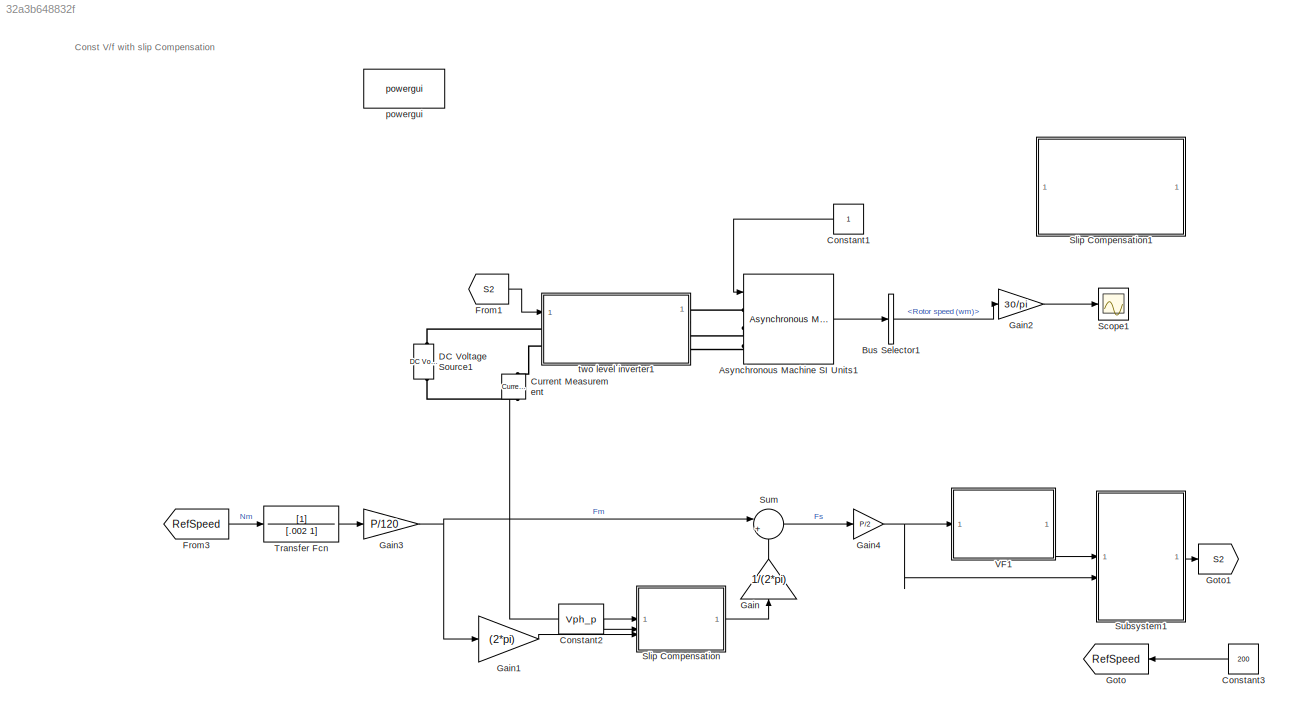
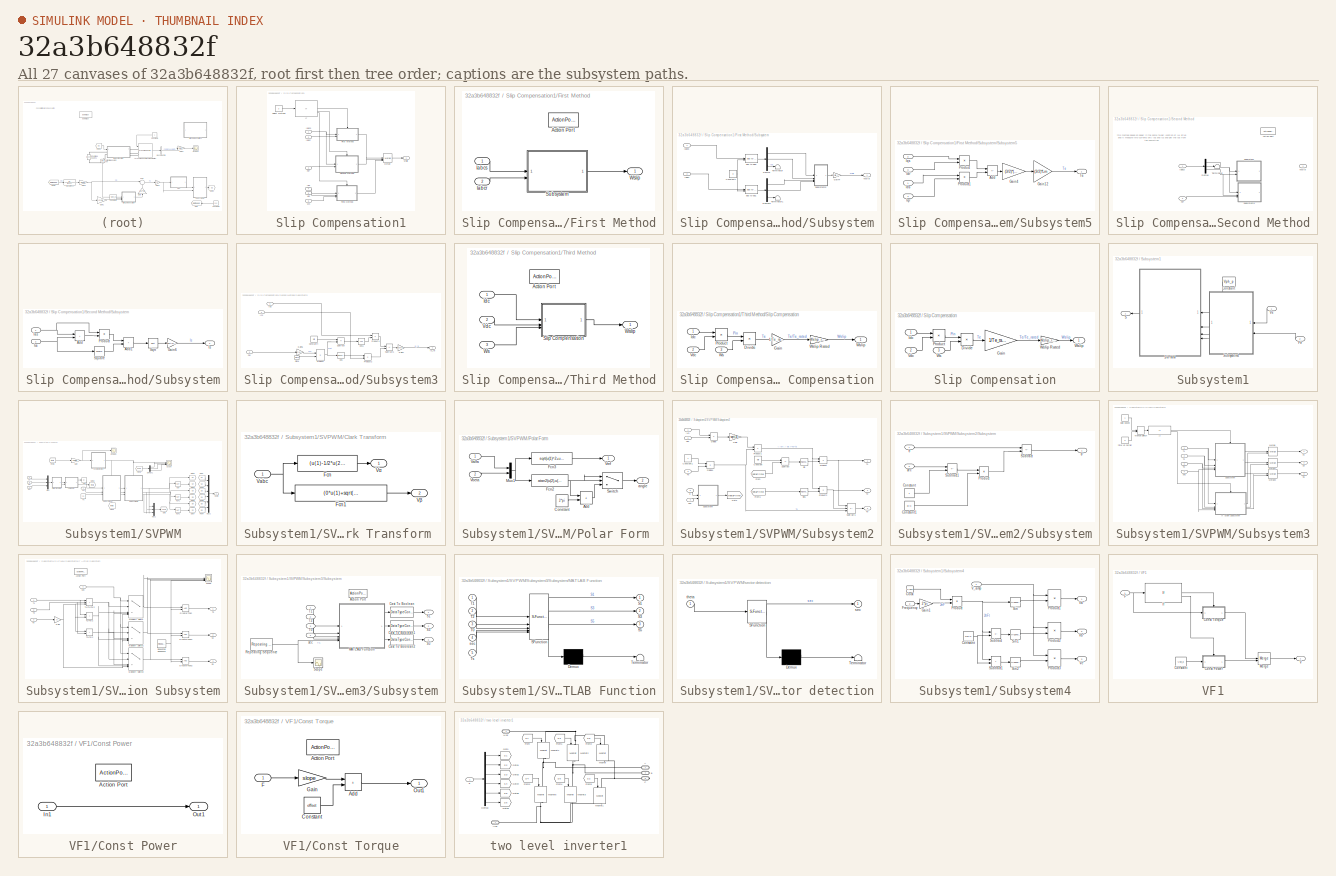
[diagram: thumbnail index - all 27 canvases of the model, root first then tree order]
MODEL slx_32a3b648832f
KIND model
CONFIG AbsTol = auto
CONFIG EnableMultiTasking = off
CONFIG FixedStep = auto
CONFIG MaxStep = auto
CONFIG MinStep = auto
CONFIG RelTol = 1e-3
CONFIG SampleTimeConstraint = Unconstrained
CONFIG SolverName = VariableStepAuto
CONFIG StartTime = 0.0
CONFIG StopTime = 10.0
BLOCK [Reference] Asynchronous Machine SI Units1  REF=spsAsynchronousMachineSIUnitsLib/Asynchronous Machine
SI Units
  SourceBlock = spsAsynchronousMachineSIUnitsLib/Asynchronous Machine\nSI Units
  SourceType = Asynchronous Machine
BLOCK [BusSelector] Bus Selector1
  OutputSignals = Mechanical.Rotor speed (wm),Stator measurements.Stator current is_a (A),Stator measurements.Stator current is_b (A),Stator measurements.Stator current is_c (A),Rotor measurements.Rotor current ir_a (A),Rotor measurements.Rotor current ir_b (A),Rotor measurements.Rotor current ir_c (A)
BLOCK [Constant] Constant1
  NameLocation = top
BLOCK [Constant] Constant2
  Value = Vph_p
BLOCK [Constant] Constant3
  NameLocation = top
  Value = 200
BLOCK [Reference] Current Measurement  REF=spsCurrentMeasurementLib/Current Measurement
  LibrarySourceBlock = sps_lib/Sensors and Measurements/Current Measurement
  NameLocation = left
  SourceBlock = spsCurrentMeasurementLib/Current Measurement
  SourceType = Current Measurement
  UserDataPersistent = on
BLOCK [Reference] DC Voltage Source1  REF=spsDCVoltageSourceLib/DC Voltage Source
  LibrarySourceBlock = sps_lib/Sources/DC Voltage Source
  SourceBlock = spsDCVoltageSourceLib/DC Voltage Source
  SourceType = DC Voltage Source
BLOCK [From] From1
  GotoTag = S2
BLOCK [From] From3
  GotoTag = RefSpeed
BLOCK [Gain] Gain
  Gain = 1/(2*pi)
  NameLocation = right
BLOCK [Gain] Gain1
  Gain = (2*pi)
BLOCK [Gain] Gain2
  Gain = 30/pi
BLOCK [Gain] Gain3
  Gain = P/120
BLOCK [Gain] Gain4
  Gain = P/2
BLOCK [Goto] Goto
  GotoTag = RefSpeed
  NameLocation = top
BLOCK [Goto] Goto1
  GotoTag = S2
BLOCK [Scope] Scope1
  Floating = off
  NumInputPorts = 1
  ScopeSpecificationString = Simulink.scopes.TimeScopeBlockCfg('CurrentConfiguration', extmgr.ConfigurationSet(extmgr.Configuration('Core','General UI',true),extmgr.Configuration('Core','Source UI',true),extmgr.Configuration('Sources','WiredSimulink',true,'DataLoggingVariableName','ScopeData1'),extmgr.Configuration('Visuals','Time Domain',true,'SerializedDisplays',{struct('MinYLimReal','-1.03916','MaxYLimReal','0.11546','YLab...<+1526ch>
BLOCK [SubSystem] Slip Compensation
BLOCK [Product] Slip Compensation/Divide
  Inputs = */
BLOCK [Gain] Slip Compensation/Gain
  Gain = 1/Te_rated
BLOCK [Inport] Slip Compensation/Idc
BLOCK [Product] Slip Compensation/Product
BLOCK [Inport] Slip Compensation/Vdc
  Port = 2
BLOCK [Inport] Slip Compensation/Ws
  Port = 3
BLOCK [Outport] Slip Compensation/Wslip
BLOCK [Gain] Slip Compensation/Wslip Rated
  Gain = Wslip_rated
BLOCK [SubSystem] Slip Compensation1
  Commented = on
BLOCK [Inport] Slip Compensation1/Fe*
  Port = 3
BLOCK [SubSystem] Slip Compensation1/First Method
  TreatAsAtomicUnit = on
BLOCK [ActionPort] Slip Compensation1/First Method/Action Port
BLOCK [Inport] Slip Compensation1/First Method/Iabcr
  Port = 2
BLOCK [Inport] Slip Compensation1/First Method/Iabcs
BLOCK [SubSystem] Slip Compensation1/First Method/Subsystem
BLOCK [Constant] Slip Compensation1/First Method/Subsystem/Constant7
  Value = 0
BLOCK [Demux] Slip Compensation1/First Method/Subsystem/Demux
  Outputs = 3
BLOCK [Demux] Slip Compensation1/First Method/Subsystem/Demux1
  Outputs = 3
BLOCK [Gain] Slip Compensation1/First Method/Subsystem/Gain4
  Gain = Wslip_rated/Te_rated
BLOCK [Inport] Slip Compensation1/First Method/Subsystem/Iabcr
  Port = 2
BLOCK [Inport] Slip Compensation1/First Method/Subsystem/Iabcs
BLOCK [SubSystem] Slip Compensation1/First Method/Subsystem/Subsystem5
BLOCK [Sum] Slip Compensation1/First Method/Subsystem/Subsystem5/Add
  IconShape = rectangular
  Inputs = +-
BLOCK [Gain] Slip Compensation1/First Method/Subsystem/Subsystem5/Gain12
  Gain = (3/2)*Lm
BLOCK [Gain] Slip Compensation1/First Method/Subsystem/Subsystem5/Gain4
  Gain = (3/2)*(P/2)
BLOCK [Inport] Slip Compensation1/First Method/Subsystem/Subsystem5/Idr
  Port = 3
BLOCK [Inport] Slip Compensation1/First Method/Subsystem/Subsystem5/Ids
BLOCK [Inport] Slip Compensation1/First Method/Subsystem/Subsystem5/Iqr
  Port = 4
BLOCK [Inport] Slip Compensation1/First Method/Subsystem/Subsystem5/Iqs
  Port = 2
BLOCK [Product] Slip Compensation1/First Method/Subsystem/Subsystem5/Product
BLOCK [Product] Slip Compensation1/First Method/Subsystem/Subsystem5/Product1
BLOCK [Outport] Slip Compensation1/First Method/Subsystem/Subsystem5/Te
BLOCK [Terminator] Slip Compensation1/First Method/Subsystem/Terminator
BLOCK [Terminator] Slip Compensation1/First Method/Subsystem/Terminator1
BLOCK [Outport] Slip Compensation1/First Method/Subsystem/Wslip
BLOCK [Reference] Slip Compensation1/First Method/Subsystem/abc to dq0  REF=spsabctodq0Lib/abc to dq0
  LibrarySourceBlock = sps_lib/Control/abc to dq0
  SourceBlock = spsabctodq0Lib/abc to dq0
  SourceType = abc to dq0 Transformation
BLOCK [Reference] Slip Compensation1/First Method/Subsystem/abc to dq1  REF=spsabctodq0Lib/abc to dq0
  LibrarySourceBlock = sps_lib/Control/abc to dq0
  SourceBlock = spsabctodq0Lib/abc to dq0
  SourceType = abc to dq0 Transformation
BLOCK [Outport] Slip Compensation1/First Method/Wslip
BLOCK [Inport] Slip Compensation1/Iabcr
  Port = 2
BLOCK [Inport] Slip Compensation1/Iabcs
BLOCK [Inport] Slip Compensation1/Idc
  Port = 4
BLOCK [If] Slip Compensation1/If
  ElseIfExpressions = u1 == 2,u1 == 3
  IfExpression = u1 == 1
BLOCK [Merge] Slip Compensation1/Merge
  Inputs = 3
BLOCK [SubSystem] Slip Compensation1/Second Method
  TreatAsAtomicUnit = on
BLOCK [ActionPort] Slip Compensation1/Second Method/Action Port
BLOCK [Demux] Slip Compensation1/Second Method/Demux
  Outputs = 3
BLOCK [Inport] Slip Compensation1/Second Method/Fe*
  Port = 2
BLOCK [Inport] Slip Compensation1/Second Method/Iabcs
BLOCK [SubSystem] Slip Compensation1/Second Method/Subsystem
  NameLocation = top
BLOCK [Sum] Slip Compensation1/Second Method/Subsystem/Add
  IconShape = rectangular
BLOCK [Sum] Slip Compensation1/Second Method/Subsystem/Add1
  IconShape = rectangular
BLOCK [Gain] Slip Compensation1/Second Method/Subsystem/Gain6
  Gain = sqrt(2/3)
BLOCK [Inport] Slip Compensation1/Second Method/Subsystem/Ias
BLOCK [Inport] Slip Compensation1/Second Method/Subsystem/Ics
  Port = 2
BLOCK [Outport] Slip Compensation1/Second Method/Subsystem/Is
BLOCK [Product] Slip Compensation1/Second Method/Subsystem/Product
BLOCK [Sqrt] Slip Compensation1/Second Method/Subsystem/Sqrt
BLOCK [Math] Slip Compensation1/Second Method/Subsystem/Square
  Operator = square
BLOCK [SubSystem] Slip Compensation1/Second Method/Subsystem3
BLOCK [Clock] Slip Compensation1/Second Method/Subsystem3/Clock
BLOCK [Constant] Slip Compensation1/Second Method/Subsystem3/Constant4
  Value = pi/6
BLOCK [Trigonometry] Slip Compensation1/Second Method/Subsystem3/Cos
BLOCK [Trigonometry] Slip Compensation1/Second Method/Subsystem3/Cos1
  Operator = cos
BLOCK [Inport] Slip Compensation1/Second Method/Subsystem3/Fe*
  Port = 3
BLOCK [Gain] Slip Compensation1/Second Method/Subsystem3/Gain6
  Gain = 2*pi
BLOCK [Gain] Slip Compensation1/Second Method/Subsystem3/Gain7
  Gain = sqrt(3)
BLOCK [Inport] Slip Compensation1/Second Method/Subsystem3/Ias
BLOCK [Inport] Slip Compensation1/Second Method/Subsystem3/Ics
  Port = 2
BLOCK [Outport] Slip Compensation1/Second Method/Subsystem3/Is_re
BLOCK [Product] Slip Compensation1/Second Method/Subsystem3/Product
BLOCK [Product] Slip Compensation1/Second Method/Subsystem3/Product1
BLOCK [Product] Slip Compensation1/Second Method/Subsystem3/Product2
BLOCK [Sum] Slip Compensation1/Second Method/Subsystem3/Subtract
  IconShape = rectangular
  Inputs = -+
BLOCK [Sum] Slip Compensation1/Second Method/Subsystem3/Subtract1
  IconShape = rectangular
  Inputs = +-
BLOCK [Terminator] Slip Compensation1/Second Method/Terminator
BLOCK [Outport] Slip Compensation1/Second Method/Wslip
BLOCK [Constant] Slip Compensation1/Select Method
  Value = 3
BLOCK [SubSystem] Slip Compensation1/Third Method
  TreatAsAtomicUnit = on
BLOCK [ActionPort] Slip Compensation1/Third Method/Action Port
BLOCK [Inport] Slip Compensation1/Third Method/Idc
BLOCK [SubSystem] Slip Compensation1/Third Method/Slip Compensation
BLOCK [Product] Slip Compensation1/Third Method/Slip Compensation/Divide
  Inputs = */
BLOCK [Gain] Slip Compensation1/Third Method/Slip Compensation/Gain
  Gain = 1/Te_rated
BLOCK [Inport] Slip Compensation1/Third Method/Slip Compensation/Idc
BLOCK [Product] Slip Compensation1/Third Method/Slip Compensation/Product
BLOCK [Inport] Slip Compensation1/Third Method/Slip Compensation/Vdc
  Port = 2
BLOCK [Inport] Slip Compensation1/Third Method/Slip Compensation/Ws
  Port = 3
BLOCK [Outport] Slip Compensation1/Third Method/Slip Compensation/Wslip
BLOCK [Gain] Slip Compensation1/Third Method/Slip Compensation/Wslip Rated
  Gain = Wslip_rated
BLOCK [Inport] Slip Compensation1/Third Method/Vdc
  Port = 2
BLOCK [Inport] Slip Compensation1/Third Method/Ws
  Port = 3
BLOCK [Outport] Slip Compensation1/Third Method/Wslip
BLOCK [Inport] Slip Compensation1/Vdc
  Port = 5
BLOCK [Inport] Slip Compensation1/Ws
  Port = 6
BLOCK [Outport] Slip Compensation1/Wslip
BLOCK [SubSystem] Subsystem1
BLOCK [Constant] Subsystem1/Constant
  NameLocation = top
  Value = Vph_p
BLOCK [Inport] Subsystem1/Fe
  Port = 2
BLOCK [Outport] Subsystem1/S
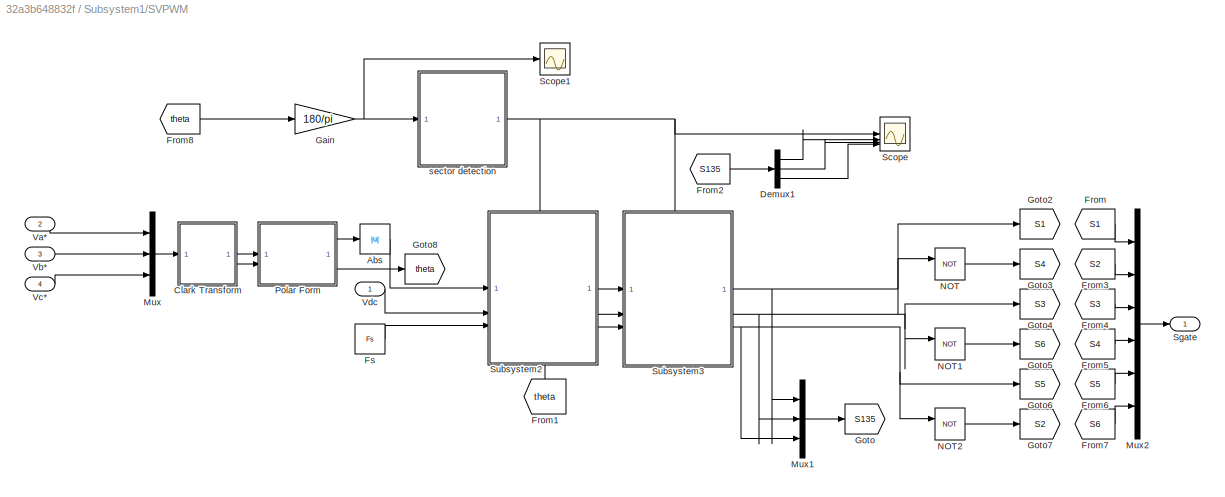
BLOCK [SubSystem] Subsystem1/SVPWM
BLOCK [Abs] Subsystem1/SVPWM/Abs
  SaturateOnIntegerOverflow = off
BLOCK [SubSystem] Subsystem1/SVPWM/Clark Transform 
BLOCK [Fcn] Subsystem1/SVPWM/Clark Transform /Fcn
  Expr = (u(1)-1/2*u(2)-1/2*u(3))
BLOCK [Fcn] Subsystem1/SVPWM/Clark Transform /Fcn1
  Expr = (0*u(1)+sqrt(3)/2*u(2)-sqrt(3)/2*u(3))
BLOCK [Inport] Subsystem1/SVPWM/Clark Transform /Vabc 
BLOCK [Outport] Subsystem1/SVPWM/Clark Transform /Vα
  VectorParamsAs1DForOutWhenUnconnected = off
BLOCK [Outport] Subsystem1/SVPWM/Clark Transform /Vβ
  Port = 2
  VectorParamsAs1DForOutWhenUnconnected = off
BLOCK [Demux] Subsystem1/SVPWM/Demux1
  Outputs = 3
BLOCK [From] Subsystem1/SVPWM/From
  GotoTag = S1
BLOCK [From] Subsystem1/SVPWM/From1
  GotoTag = theta
  NameLocation = right
BLOCK [From] Subsystem1/SVPWM/From2
  GotoTag = S135
BLOCK [From] Subsystem1/SVPWM/From3
  GotoTag = S2
BLOCK [From] Subsystem1/SVPWM/From4
  GotoTag = S3
BLOCK [From] Subsystem1/SVPWM/From5
  GotoTag = S4
BLOCK [From] Subsystem1/SVPWM/From6
  GotoTag = S5
BLOCK [From] Subsystem1/SVPWM/From7
  GotoTag = S6
BLOCK [From] Subsystem1/SVPWM/From8
  GotoTag = theta
BLOCK [Constant] Subsystem1/SVPWM/Fs
  Value = Fs
BLOCK [Gain] Subsystem1/SVPWM/Gain
  Gain = 180/pi
BLOCK [Goto] Subsystem1/SVPWM/Goto
  GotoTag = S135
BLOCK [Goto] Subsystem1/SVPWM/Goto2
  GotoTag = S1
BLOCK [Goto] Subsystem1/SVPWM/Goto3
  GotoTag = S4
BLOCK [Goto] Subsystem1/SVPWM/Goto4
  GotoTag = S3
BLOCK [Goto] Subsystem1/SVPWM/Goto5
  GotoTag = S6
BLOCK [Goto] Subsystem1/SVPWM/Goto6
  GotoTag = S5
BLOCK [Goto] Subsystem1/SVPWM/Goto7
  GotoTag = S2
BLOCK [Goto] Subsystem1/SVPWM/Goto8
  GotoTag = theta
BLOCK [Mux] Subsystem1/SVPWM/Mux
  DisplayOption = bar
  Inputs = 3
BLOCK [Mux] Subsystem1/SVPWM/Mux1
  DisplayOption = bar
  Inputs = 3
BLOCK [Mux] Subsystem1/SVPWM/Mux2
  DisplayOption = bar
  Inputs = 6
BLOCK [Logic] Subsystem1/SVPWM/NOT
  AllPortsSameDT = off
  IconShape = distinctive
  Operator = NOT
  OutDataTypeStr = boolean
BLOCK [Logic] Subsystem1/SVPWM/NOT1
  AllPortsSameDT = off
  IconShape = distinctive
  Operator = NOT
  OutDataTypeStr = boolean
BLOCK [Logic] Subsystem1/SVPWM/NOT2
  AllPortsSameDT = off
  IconShape = distinctive
  Operator = NOT
  OutDataTypeStr = boolean
BLOCK [SubSystem] Subsystem1/SVPWM/Polar Form 
BLOCK [Sum] Subsystem1/SVPWM/Polar Form /Add
  IconShape = rectangular
BLOCK [Constant] Subsystem1/SVPWM/Polar Form /Constant
  Value = 2*pi
BLOCK [Fcn] Subsystem1/SVPWM/Polar Form /Fcn2
  Expr = atan2(u(2),u(1))
BLOCK [Fcn] Subsystem1/SVPWM/Polar Form /Fcn3
  Expr = sqrt(u(1)^2+u(2)^2)
BLOCK [Mux] Subsystem1/SVPWM/Polar Form /Mux1
  DisplayOption = bar
  Inputs = 2
BLOCK [Switch] Subsystem1/SVPWM/Polar Form /Switch
  Criteria = u2 > Threshold
  InputSameDT = off
  SaturateOnIntegerOverflow = off
BLOCK [Inport] Subsystem1/SVPWM/Polar Form /Valfa
BLOCK [Inport] Subsystem1/SVPWM/Polar Form /Vbeta
  Port = 2
BLOCK [Outport] Subsystem1/SVPWM/Polar Form /Vref
  VectorParamsAs1DForOutWhenUnconnected = off
BLOCK [Outport] Subsystem1/SVPWM/Polar Form /angle
  Port = 2
  VectorParamsAs1DForOutWhenUnconnected = off
BLOCK [Scope] Subsystem1/SVPWM/Scope
  Floating = off
  NumInputPorts = 4
  ScopeSpecificationString = Simulink.scopes.TimeScopeBlockCfg('CurrentConfiguration', extmgr.ConfigurationSet(extmgr.Configuration('Core','General UI',true),extmgr.Configuration('Core','Source UI',true),extmgr.Configuration('Sources','WiredSimulink',true,'DataLoggingVariableName','ScopeData3'),extmgr.Configuration('Visuals','Time Domain',true,'SerializedDisplays',{struct('MinYLimReal','-0.75','MaxYLimReal','6.75','YLabelReal...<+1488ch>
BLOCK [Scope] Subsystem1/SVPWM/Scope1
  Floating = off
  NumInputPorts = 1
  ScopeSpecificationString = Simulink.scopes.TimeScopeBlockCfg('CurrentConfiguration', extmgr.ConfigurationSet(extmgr.Configuration('Core','General UI',true),extmgr.Configuration('Core','Source UI',true),extmgr.Configuration('Sources','WiredSimulink',true,'DataLoggingVariableName','ScopeData2'),extmgr.Configuration('Visuals','Time Domain',true,'SerializedDisplays',{struct('MinYLimReal','-45.00000','MaxYLimReal','405.00000','Y...<+1392ch>
BLOCK [Outport] Subsystem1/SVPWM/Sgate
BLOCK [SubSystem] Subsystem1/SVPWM/Subsystem2
  PortSchema = {"entries":[{"content":{"sides":[{"content":{"connectorIds":["In1","In2","In3"]},"type":"ConnectorPlacement.EquallySpacedRectSide","uuid":"13f95eee-8106-4f2d-b5f9-665b5c53ca49"},{"content":{"connectorIds":["Out1","Out2","Out3"],"side":"RIGHT"},"type":"ConnectorPlacement.EquallySpacedRectSide","uuid":"3e078310-26cc-4d9c-be70-8da9dd20e061"},{"content":{"connectorIds":["In4"],"side":"TOP"},"type":"Co...<+420ch>
BLOCK [Inport] Subsystem1/SVPWM/Subsystem2/ θ
  Port = 5
BLOCK [Constant] Subsystem1/SVPWM/Subsystem2/Constant
  Value = pi/3
BLOCK [Constant] Subsystem1/SVPWM/Subsystem2/Constant1
BLOCK [Product] Subsystem1/SVPWM/Subsystem2/Divide
  Inputs = */
BLOCK [Product] Subsystem1/SVPWM/Subsystem2/Divide1
  Inputs = */
BLOCK [From] Subsystem1/SVPWM/Subsystem2/From
  GotoTag = thetaPrime
BLOCK [From] Subsystem1/SVPWM/Subsystem2/From1
  GotoTag = thetaPrime
BLOCK [Inport] Subsystem1/SVPWM/Subsystem2/Fs
  Port = 3
BLOCK [Gain] Subsystem1/SVPWM/Subsystem2/Gain
  Gain = sqrt(3)
BLOCK [Goto] Subsystem1/SVPWM/Subsystem2/Goto
  GotoTag = thetaPrime
BLOCK [Product] Subsystem1/SVPWM/Subsystem2/Product
BLOCK [Product] Subsystem1/SVPWM/Subsystem2/Product1
BLOCK [Product] Subsystem1/SVPWM/Subsystem2/Product2
BLOCK [Trigonometry] Subsystem1/SVPWM/Subsystem2/Sin
BLOCK [Trigonometry] Subsystem1/SVPWM/Subsystem2/Sin1
BLOCK [SubSystem] Subsystem1/SVPWM/Subsystem2/Subsystem
BLOCK [Constant] Subsystem1/SVPWM/Subsystem2/Subsystem/Constant
BLOCK [Constant] Subsystem1/SVPWM/Subsystem2/Subsystem/Constant1
  Value = pi/3
BLOCK [Product] Subsystem1/SVPWM/Subsystem2/Subsystem/Product
BLOCK [Sum] Subsystem1/SVPWM/Subsystem2/Subsystem/Subtract
  IconShape = rectangular
  Inputs = +-
BLOCK [Sum] Subsystem1/SVPWM/Subsystem2/Subsystem/Subtract1
  IconShape = rectangular
  Inputs = +-
BLOCK [Inport] Subsystem1/SVPWM/Subsystem2/Subsystem/sec
  Port = 2
BLOCK [Inport] Subsystem1/SVPWM/Subsystem2/Subsystem/θ
BLOCK [Outport] Subsystem1/SVPWM/Subsystem2/Subsystem/θ`
BLOCK [Sum] Subsystem1/SVPWM/Subsystem2/Subtract
  IconShape = rectangular
  Inputs = +-
BLOCK [Sum] Subsystem1/SVPWM/Subsystem2/Subtract1
  IconShape = rectangular
  Inputs = --+
BLOCK [Outport] Subsystem1/SVPWM/Subsystem2/T0
  Port = 3
BLOCK [Outport] Subsystem1/SVPWM/Subsystem2/T1
BLOCK [Outport] Subsystem1/SVPWM/Subsystem2/T2
  Port = 2
BLOCK [Inport] Subsystem1/SVPWM/Subsystem2/Vdc
  Port = 2
BLOCK [Inport] Subsystem1/SVPWM/Subsystem2/sec
  Port = 4
BLOCK [Inport] Subsystem1/SVPWM/Subsystem2/|Vr|
BLOCK [SubSystem] Subsystem1/SVPWM/Subsystem3
  PortSchema = {"entries":[{"content":{"sides":[{"content":{"connectorIds":["In1","In2","In3"]},"type":"ConnectorPlacement.EquallySpacedRectSide","uuid":"6c42d831-0426-4967-81f5-911cdfb3d9a5"},{"content":{"connectorIds":["Out1","Out2","Out3"],"side":"RIGHT"},"type":"ConnectorPlacement.EquallySpacedRectSide","uuid":"75f77ef2-8b2a-4026-a5e0-70e2e431df99"},{"content":{"connectorIds":["In4"],"side":"TOP"},"type":"Co...<+397ch>
BLOCK [If] Subsystem1/SVPWM/Subsystem3/If
  IfExpression = u1 == 1
BLOCK [SubSystem] Subsystem1/SVPWM/Subsystem3/If Action Subsystem
  TreatAsAtomicUnit = on
BLOCK [ActionPort] Subsystem1/SVPWM/Subsystem3/If Action Subsystem/Action Port
  ActionPortLabel = else
BLOCK [Gain] Subsystem1/SVPWM/Subsystem3/If Action Subsystem/Gain
  Gain = .5
BLOCK [RelationalOperator] Subsystem1/SVPWM/Subsystem3/If Action Subsystem/GreaterThan
  InputSameDT = off
  OutDataTypeStr = boolean
  RndMeth = Simplest
BLOCK [RelationalOperator] Subsystem1/SVPWM/Subsystem3/If Action Subsystem/GreaterThan1
  InputSameDT = off
  OutDataTypeStr = boolean
  RndMeth = Simplest
BLOCK [RelationalOperator] Subsystem1/SVPWM/Subsystem3/If Action Subsystem/GreaterThan2
  InputSameDT = off
  OutDataTypeStr = boolean
  RndMeth = Simplest
BLOCK [MultiPortSwitch] Subsystem1/SVPWM/Subsystem3/If Action Subsystem/Multiport Switch
  DataPortIndices = {[1,6],2,5,[3,4]}
  DataPortOrder = Specify indices
  InputSameDT = off
  SaturateOnIntegerOverflow = off
BLOCK [MultiPortSwitch] Subsystem1/SVPWM/Subsystem3/If Action Subsystem/Multiport Switch1
  DataPortIndices = {[2,3],1,4,[5,6]}
  DataPortOrder = Specify indices
  InputSameDT = off
  SaturateOnIntegerOverflow = off
BLOCK [MultiPortSwitch] Subsystem1/SVPWM/Subsystem3/If Action Subsystem/Multiport Switch2
  DataPortIndices = {[4,5],3,6,[1,2]}
  DataPortOrder = Specify indices
  InputSameDT = off
  SaturateOnIntegerOverflow = off
BLOCK [Reference] Subsystem1/SVPWM/Subsystem3/If Action Subsystem/Repeating Sequence  REF=simulink/Sources/Repeating
Sequence
  SourceBlock = simulink/Sources/Repeating\nSequence
  SourceType = Repeating table
BLOCK [Outport] Subsystem1/SVPWM/Subsystem3/If Action Subsystem/S1
BLOCK [Outport] Subsystem1/SVPWM/Subsystem3/If Action Subsystem/S3
  Port = 2
BLOCK [Outport] Subsystem1/SVPWM/Subsystem3/If Action Subsystem/S5
  Port = 3
BLOCK [Scope] Subsystem1/SVPWM/Subsystem3/If Action Subsystem/Scope
  Floating = off
  NumInputPorts = 4
  ScopeSpecificationString = Simulink.scopes.TimeScopeBlockCfg('CurrentConfiguration', extmgr.ConfigurationSet(extmgr.Configuration('Core','General UI',true),extmgr.Configuration('Core','Source UI',true),extmgr.Configuration('Sources','WiredSimulink',true,'DataLoggingVariableName','ScopeData1'),extmgr.Configuration('Visuals','Time Domain',true,'SerializedDisplays',{struct('MinYLimReal','-0.00215','MaxYLimReal','0.00225','YLab...<+1534ch>
BLOCK [Inport] Subsystem1/SVPWM/Subsystem3/If Action Subsystem/T0
  Port = 3
BLOCK [Inport] Subsystem1/SVPWM/Subsystem3/If Action Subsystem/T1
BLOCK [Sum] Subsystem1/SVPWM/Subsystem3/If Action Subsystem/T1+T0//2
  IconShape = rectangular
BLOCK [Sum] Subsystem1/SVPWM/Subsystem3/If Action Subsystem/T1+T2+T0//2
  IconShape = rectangular
  Inputs = +++
BLOCK [Inport] Subsystem1/SVPWM/Subsystem3/If Action Subsystem/T2
  Port = 2
BLOCK [Sum] Subsystem1/SVPWM/Subsystem3/If Action Subsystem/T2+T0//2
  IconShape = rectangular
BLOCK [Inport] Subsystem1/SVPWM/Subsystem3/If Action Subsystem/sec
  Port = 4
BLOCK [ManualSwitch] Subsystem1/SVPWM/Subsystem3/Manual Switch
BLOCK [Merge] Subsystem1/SVPWM/Subsystem3/Merge
BLOCK [Merge] Subsystem1/SVPWM/Subsystem3/Merge1
BLOCK [Merge] Subsystem1/SVPWM/Subsystem3/Merge2
BLOCK [Outport] Subsystem1/SVPWM/Subsystem3/S1
BLOCK [Outport] Subsystem1/SVPWM/Subsystem3/S3
  Port = 2
BLOCK [Outport] Subsystem1/SVPWM/Subsystem3/S5
  Port = 3
BLOCK [SubSystem] Subsystem1/SVPWM/Subsystem3/Subsystem
BLOCK [ActionPort] Subsystem1/SVPWM/Subsystem3/Subsystem/Action Port
  ActionPortLabel = if(u1 == 1)
BLOCK [DataTypeConversion] Subsystem1/SVPWM/Subsystem3/Subsystem/Cast To Boolean
  OutDataTypeStr = boolean
  RndMeth = Floor
  SaturateOnIntegerOverflow = off
BLOCK [DataTypeConversion] Subsystem1/SVPWM/Subsystem3/Subsystem/Cast To Boolean1
  OutDataTypeStr = boolean
  RndMeth = Floor
  SaturateOnIntegerOverflow = off
BLOCK [DataTypeConversion] Subsystem1/SVPWM/Subsystem3/Subsystem/Cast To Boolean2
  OutDataTypeStr = boolean
  RndMeth = Floor
  SaturateOnIntegerOverflow = off
BLOCK [SubSystem] Subsystem1/SVPWM/Subsystem3/Subsystem/MATLAB Function
  ErrorFcn = Stateflow.Translate.translate
  LibrarySourceBlock = simulink/User-Defined\nFunctions/MATLAB Function
  PermitHierarchicalResolution = ExplicitOnly
  SFBlockType = MATLAB Function
  TreatAsAtomicUnit = on
BLOCK [Demux] Subsystem1/SVPWM/Subsystem3/Subsystem/MATLAB Function/ Demux 
  Outputs = 1
BLOCK [S-Function] Subsystem1/SVPWM/Subsystem3/Subsystem/MATLAB Function/ SFunction 
  EnableBusSupport = on
  FunctionName = sf_sfun
  PortCounts = [5 4]
  SFcnIsStateOwnerBlock = off
  SFunctionDeploymentMode = off
  Tag = Stateflow S-Function 5
BLOCK [Terminator] Subsystem1/SVPWM/Subsystem3/Subsystem/MATLAB Function/ Terminator 
BLOCK [Outport] Subsystem1/SVPWM/Subsystem3/Subsystem/MATLAB Function/S1
BLOCK [Outport] Subsystem1/SVPWM/Subsystem3/Subsystem/MATLAB Function/S3
  Port = 2
BLOCK [Outport] Subsystem1/SVPWM/Subsystem3/Subsystem/MATLAB Function/S5
  Port = 3
BLOCK [Inport] Subsystem1/SVPWM/Subsystem3/Subsystem/MATLAB Function/T0
  Port = 3
BLOCK [Inport] Subsystem1/SVPWM/Subsystem3/Subsystem/MATLAB Function/T1
BLOCK [Inport] Subsystem1/SVPWM/Subsystem3/Subsystem/MATLAB Function/T2
  Port = 2
BLOCK [Inport] Subsystem1/SVPWM/Subsystem3/Subsystem/MATLAB Function/Ts
  Port = 5
BLOCK [Inport] Subsystem1/SVPWM/Subsystem3/Subsystem/MATLAB Function/sec
  Port = 4
BLOCK [Reference] Subsystem1/SVPWM/Subsystem3/Subsystem/Repeating Sequence  REF=simulink/Sources/Repeating
Sequence
  SourceBlock = simulink/Sources/Repeating\nSequence
  SourceType = Repeating table
BLOCK [Outport] Subsystem1/SVPWM/Subsystem3/Subsystem/S1
BLOCK [Outport] Subsystem1/SVPWM/Subsystem3/Subsystem/S3
  Port = 2
BLOCK [Outport] Subsystem1/SVPWM/Subsystem3/Subsystem/S5
  Port = 3
BLOCK [Scope] Subsystem1/SVPWM/Subsystem3/Subsystem/Scope
  Floating = off
  NumInputPorts = 1
  ScopeSpecificationString = Simulink.scopes.TimeScopeBlockCfg('CurrentConfiguration', extmgr.ConfigurationSet(extmgr.Configuration('Core','General UI',true),extmgr.Configuration('Core','Source UI',true),extmgr.Configuration('Sources','WiredSimulink',true,'DataLoggingVariableName','ScopeData1'),extmgr.Configuration('Visuals','Time Domain',true,'SerializedDisplays',{struct('MinYLimReal','-0.00002','MaxYLimReal','0.00022','YLab...<+1409ch>
BLOCK [Inport] Subsystem1/SVPWM/Subsystem3/Subsystem/T0
  Port = 3
BLOCK [Inport] Subsystem1/SVPWM/Subsystem3/Subsystem/T1
BLOCK [Inport] Subsystem1/SVPWM/Subsystem3/Subsystem/T2
  Port = 2
BLOCK [Inport] Subsystem1/SVPWM/Subsystem3/Subsystem/sec
  Port = 4
BLOCK [Inport] Subsystem1/SVPWM/Subsystem3/T0
  Port = 3
BLOCK [Inport] Subsystem1/SVPWM/Subsystem3/T1
BLOCK [Inport] Subsystem1/SVPWM/Subsystem3/T2
  Port = 2
BLOCK [Constant] Subsystem1/SVPWM/Subsystem3/logic based
BLOCK [Inport] Subsystem1/SVPWM/Subsystem3/sec
  Port = 4
BLOCK [Constant] Subsystem1/SVPWM/Subsystem3/time Vs carrier
  Value = 0
BLOCK [Inport] Subsystem1/SVPWM/Va*
  Port = 2
BLOCK [Inport] Subsystem1/SVPWM/Vb*
  Port = 3
BLOCK [Inport] Subsystem1/SVPWM/Vc*
  Port = 4
BLOCK [Inport] Subsystem1/SVPWM/Vdc
BLOCK [SubSystem] Subsystem1/SVPWM/sector detection
  ErrorFcn = Stateflow.Translate.translate
  LibrarySourceBlock = simulink/User-Defined\nFunctions/MATLAB Function
  PermitHierarchicalResolution = ExplicitOnly
  SFBlockType = MATLAB Function
  TreatAsAtomicUnit = on
BLOCK [Demux] Subsystem1/SVPWM/sector detection/ Demux 
  Outputs = 1
BLOCK [S-Function] Subsystem1/SVPWM/sector detection/ SFunction 
  EnableBusSupport = on
  FunctionName = sf_sfun
  PortCounts = [1 2]
  SFcnIsStateOwnerBlock = off
  SFunctionDeploymentMode = off
  Tag = Stateflow S-Function 6
BLOCK [Terminator] Subsystem1/SVPWM/sector detection/ Terminator 
BLOCK [Outport] Subsystem1/SVPWM/sector detection/sec
BLOCK [Inport] Subsystem1/SVPWM/sector detection/theta
BLOCK [SubSystem] Subsystem1/Subsystem4
  NameLocation = top
BLOCK [Clock] Subsystem1/Subsystem4/Clock
BLOCK [Constant] Subsystem1/Subsystem4/Constant
  Value = 2*pi/3
BLOCK [Inport] Subsystem1/Subsystem4/Frequency
  Port = 2
BLOCK [Gain] Subsystem1/Subsystem4/Gain1
  Gain = 2*pi
BLOCK [Product] Subsystem1/Subsystem4/Product
BLOCK [Product] Subsystem1/Subsystem4/Product1
BLOCK [Product] Subsystem1/Subsystem4/Product2
BLOCK [Product] Subsystem1/Subsystem4/Product3
BLOCK [Trigonometry] Subsystem1/Subsystem4/Sin
BLOCK [Trigonometry] Subsystem1/Subsystem4/Sin1
BLOCK [Trigonometry] Subsystem1/Subsystem4/Sin2
BLOCK [Sum] Subsystem1/Subsystem4/Subtract
  IconShape = rectangular
  Inputs = +-
BLOCK [Sum] Subsystem1/Subsystem4/Subtract1
  IconShape = rectangular
BLOCK [Inport] Subsystem1/Subsystem4/V_amp
BLOCK [Outport] Subsystem1/Subsystem4/Va*
BLOCK [Outport] Subsystem1/Subsystem4/Vb*
  Port = 2
BLOCK [Outport] Subsystem1/Subsystem4/Vc*
  Port = 3
BLOCK [Inport] Subsystem1/Vs
BLOCK [Sum] Sum
  Inputs = |++
BLOCK [TransferFcn] Transfer Fcn
  Denominator = [.002 1]
BLOCK [SubSystem] VF1
BLOCK [SubSystem] VF1/Const Power
  TreatAsAtomicUnit = on
BLOCK [ActionPort] VF1/Const Power/Action Port
  ActionPortLabel = else
BLOCK [Inport] VF1/Const Power/In1
BLOCK [Outport] VF1/Const Power/Out1
BLOCK [SubSystem] VF1/Const Torque
  TreatAsAtomicUnit = on
BLOCK [ActionPort] VF1/Const Torque/Action Port
  ActionPortLabel = if(u1 <= 50)
BLOCK [Sum] VF1/Const Torque/Add
  IconShape = rectangular
BLOCK [Constant] VF1/Const Torque/Constant
  Value = offset
BLOCK [Inport] VF1/Const Torque/F
BLOCK [Gain] VF1/Const Torque/Gain
  Gain = slope
BLOCK [Outport] VF1/Const Torque/Out1
BLOCK [Constant] VF1/Constant
  Value = Vph_p
BLOCK [Inport] VF1/F
BLOCK [If] VF1/If
  IfExpression = u1 <= 50
BLOCK [Merge] VF1/Merge
BLOCK [Outport] VF1/V
BLOCK [Reference] powergui  REF=sps_lib/powergui
  LibrarySourceBlock = sps_lib/powergui
  Priority = 1
  SourceBlock = sps_lib/powergui
  SourceType = PSB option menu block
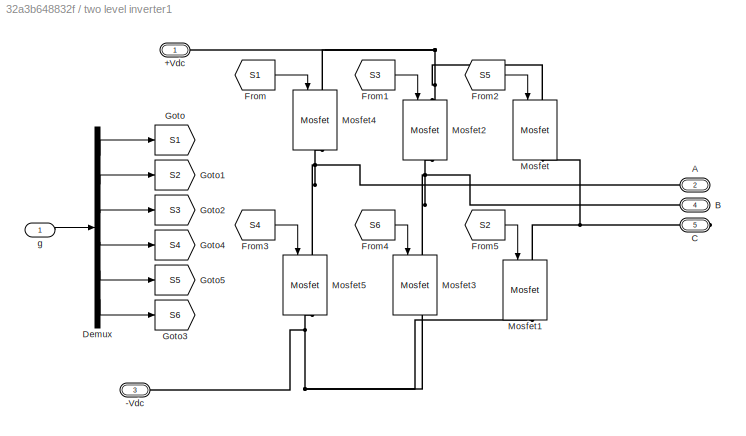
BLOCK [SubSystem] two level inverter1
BLOCK [PMIOPort] two level inverter1/+Vdc
  Side = Left
BLOCK [PMIOPort] two level inverter1/-Vdc
  Port = 3
  Side = Left
BLOCK [PMIOPort] two level inverter1/A
  Port = 2
  Side = Right
BLOCK [PMIOPort] two level inverter1/B
  Port = 4
  Side = Right
BLOCK [PMIOPort] two level inverter1/C
  Port = 5
  Side = Right
BLOCK [Demux] two level inverter1/Demux
  Outputs = 6
BLOCK [From] two level inverter1/From
  GotoTag = S1
BLOCK [From] two level inverter1/From1
  GotoTag = S3
BLOCK [From] two level inverter1/From2
  GotoTag = S5
BLOCK [From] two level inverter1/From3
  GotoTag = S4
BLOCK [From] two level inverter1/From4
  GotoTag = S6
BLOCK [From] two level inverter1/From5
  GotoTag = S2
BLOCK [Goto] two level inverter1/Goto
  GotoTag = S1
BLOCK [Goto] two level inverter1/Goto1
  GotoTag = S2
BLOCK [Goto] two level inverter1/Goto2
  GotoTag = S3
BLOCK [Goto] two level inverter1/Goto3
  GotoTag = S6
BLOCK [Goto] two level inverter1/Goto4
  GotoTag = S4
BLOCK [Goto] two level inverter1/Goto5
  GotoTag = S5
BLOCK [Reference] two level inverter1/Mosfet  REF=spsMosfetLib/Mosfet
  LibrarySourceBlock = sps_lib/Power Electronics/Mosfet
  NameLocation = right
  SourceBlock = spsMosfetLib/Mosfet
  SourceType = Mosfet
BLOCK [Reference] two level inverter1/Mosfet1  REF=spsMosfetLib/Mosfet
  LibrarySourceBlock = sps_lib/Power Electronics/Mosfet
  NameLocation = right
  SourceBlock = spsMosfetLib/Mosfet
  SourceType = Mosfet
BLOCK [Reference] two level inverter1/Mosfet2  REF=spsMosfetLib/Mosfet
  LibrarySourceBlock = sps_lib/Power Electronics/Mosfet
  NameLocation = right
  SourceBlock = spsMosfetLib/Mosfet
  SourceType = Mosfet
BLOCK [Reference] two level inverter1/Mosfet3  REF=spsMosfetLib/Mosfet
  LibrarySourceBlock = sps_lib/Power Electronics/Mosfet
  NameLocation = right
  SourceBlock = spsMosfetLib/Mosfet
  SourceType = Mosfet
BLOCK [Reference] two level inverter1/Mosfet4  REF=spsMosfetLib/Mosfet
  LibrarySourceBlock = sps_lib/Power Electronics/Mosfet
  NameLocation = right
  SourceBlock = spsMosfetLib/Mosfet
  SourceType = Mosfet
BLOCK [Reference] two level inverter1/Mosfet5  REF=spsMosfetLib/Mosfet
  LibrarySourceBlock = sps_lib/Power Electronics/Mosfet
  NameLocation = right
  SourceBlock = spsMosfetLib/Mosfet
  SourceType = Mosfet
BLOCK [Inport] two level inverter1/g
ANNOTATION (root): Const V/f with slip Compensation
ANNOTATION Slip Compensation1/Second Method: this method based on paper in the same folder location of IM drive and it measure two currents only Ias and Ics and get the Ibs from the summtion
LINE Asynchronous Machine SI Units1:1 -> Bus Selector1:1
LINE Bus Selector1:1 -> Gain2:1
LINE Constant1:1 -> Asynchronous Machine SI Units1:1
LINE Constant2:1 -> Slip Compensation:2
LINE Constant3:1 -> Goto:1
LINE Current Measurement:1 -> Slip Compensation:1
LINE From1:1 -> two level inverter1:1
LINE From3:1 -> Transfer Fcn:1
LINE Gain1:1 -> Slip Compensation:3
LINE Gain2:1 -> Scope1:1
NET Gain3:1 -> Gain1:1, Sum:1
NET Gain4:1 -> Subsystem1:2, VF1:1
LINE Gain:1 -> Sum:2
LINE Slip Compensation/Divide:1 -> Slip Compensation/Gain:1
LINE Slip Compensation/Gain:1 -> Slip Compensation/Wslip Rated:1
LINE Slip Compensation/Idc:1 -> Slip Compensation/Product:1
LINE Slip Compensation/Product:1 -> Slip Compensation/Divide:1
LINE Slip Compensation/Vdc:1 -> Slip Compensation/Product:2
LINE Slip Compensation/Ws:1 -> Slip Compensation/Divide:2
LINE Slip Compensation/Wslip Rated:1 -> Slip Compensation/Wslip:1
LINE Slip Compensation1/Fe*:1 -> Slip Compensation1/Second Method:2
LINE Slip Compensation1/First Method/Iabcr:1 -> Slip Compensation1/First Method/Subsystem:2
LINE Slip Compensation1/First Method/Iabcs:1 -> Slip Compensation1/First Method/Subsystem:1
NET Slip Compensation1/First Method/Subsystem/Constant7:1 -> Slip Compensation1/First Method/Subsystem/abc to dq0:2, Slip Compensation1/First Method/Subsystem/abc to dq1:2
LINE Slip Compensation1/First Method/Subsystem/Demux1:1 -> Slip Compensation1/First Method/Subsystem/Subsystem5:3
LINE Slip Compensation1/First Method/Subsystem/Demux1:2 -> Slip Compensation1/First Method/Subsystem/Subsystem5:4
LINE Slip Compensation1/First Method/Subsystem/Demux1:3 -> Slip Compensation1/First Method/Subsystem/Terminator1:1
LINE Slip Compensation1/First Method/Subsystem/Demux:1 -> Slip Compensation1/First Method/Subsystem/Subsystem5:1
LINE Slip Compensation1/First Method/Subsystem/Demux:2 -> Slip Compensation1/First Method/Subsystem/Subsystem5:2
LINE Slip Compensation1/First Method/Subsystem/Demux:3 -> Slip Compensation1/First Method/Subsystem/Terminator:1
LINE Slip Compensation1/First Method/Subsystem/Gain4:1 -> Slip Compensation1/First Method/Subsystem/Wslip:1
LINE Slip Compensation1/First Method/Subsystem/Iabcr:1 -> Slip Compensation1/First Method/Subsystem/abc to dq1:1
LINE Slip Compensation1/First Method/Subsystem/Iabcs:1 -> Slip Compensation1/First Method/Subsystem/abc to dq0:1
LINE Slip Compensation1/First Method/Subsystem/Subsystem5/Add:1 -> Slip Compensation1/First Method/Subsystem/Subsystem5/Gain4:1
LINE Slip Compensation1/First Method/Subsystem/Subsystem5/Gain12:1 -> Slip Compensation1/First Method/Subsystem/Subsystem5/Te:1
LINE Slip Compensation1/First Method/Subsystem/Subsystem5/Gain4:1 -> Slip Compensation1/First Method/Subsystem/Subsystem5/Gain12:1
LINE Slip Compensation1/First Method/Subsystem/Subsystem5/Idr:1 -> Slip Compensation1/First Method/Subsystem/Subsystem5/Product:2
LINE Slip Compensation1/First Method/Subsystem/Subsystem5/Ids:1 -> Slip Compensation1/First Method/Subsystem/Subsystem5/Product1:1
LINE Slip Compensation1/First Method/Subsystem/Subsystem5/Iqr:1 -> Slip Compensation1/First Method/Subsystem/Subsystem5/Product1:2
LINE Slip Compensation1/First Method/Subsystem/Subsystem5/Iqs:1 -> Slip Compensation1/First Method/Subsystem/Subsystem5/Product:1
LINE Slip Compensation1/First Method/Subsystem/Subsystem5/Product1:1 -> Slip Compensation1/First Method/Subsystem/Subsystem5/Add:2
LINE Slip Compensation1/First Method/Subsystem/Subsystem5/Product:1 -> Slip Compensation1/First Method/Subsystem/Subsystem5/Add:1
LINE Slip Compensation1/First Method/Subsystem/Subsystem5:1 -> Slip Compensation1/First Method/Subsystem/Gain4:1
LINE Slip Compensation1/First Method/Subsystem/abc to dq0:1 -> Slip Compensation1/First Method/Subsystem/Demux:1
LINE Slip Compensation1/First Method/Subsystem/abc to dq1:1 -> Slip Compensation1/First Method/Subsystem/Demux1:1
LINE Slip Compensation1/First Method/Subsystem:1 -> Slip Compensation1/First Method/Wslip:1
LINE Slip Compensation1/First Method:1 -> Slip Compensation1/Merge:1
LINE Slip Compensation1/Iabcr:1 -> Slip Compensation1/First Method:2
NET Slip Compensation1/Iabcs:1 -> Slip Compensation1/First Method:1, Slip Compensation1/Second Method:1
LINE Slip Compensation1/Idc:1 -> Slip Compensation1/Third Method:1
LINE Slip Compensation1/If:1 -> Slip Compensation1/First Method:ifaction
LINE Slip Compensation1/If:2 -> Slip Compensation1/Second Method:ifaction
LINE Slip Compensation1/If:3 -> Slip Compensation1/Third Method:ifaction
LINE Slip Compensation1/Merge:1 -> Slip Compensation1/Wslip:1
NET Slip Compensation1/Second Method/Demux:1 -> Slip Compensation1/Second Method/Subsystem3:1, Slip Compensation1/Second Method/Subsystem:1
LINE Slip Compensation1/Second Method/Demux:2 -> Slip Compensation1/Second Method/Terminator:1
NET Slip Compensation1/Second Method/Demux:3 -> Slip Compensation1/Second Method/Subsystem3:2, Slip Compensation1/Second Method/Subsystem:2
LINE Slip Compensation1/Second Method/Fe*:1 -> Slip Compensation1/Second Method/Subsystem3:3
LINE Slip Compensation1/Second Method/Iabcs:1 -> Slip Compensation1/Second Method/Demux:1
LINE Slip Compensation1/Second Method/Subsystem/Add1:1 -> Slip Compensation1/Second Method/Subsystem/Sqrt:1
LINE Slip Compensation1/Second Method/Subsystem/Add:1 -> Slip Compensation1/Second Method/Subsystem/Product:2
LINE Slip Compensation1/Second Method/Subsystem/Gain6:1 -> Slip Compensation1/Second Method/Subsystem/Is:1
NET Slip Compensation1/Second Method/Subsystem/Ias:1 -> Slip Compensation1/Second Method/Subsystem/Add:1, Slip Compensation1/Second Method/Subsystem/Product:1
NET Slip Compensation1/Second Method/Subsystem/Ics:1 -> Slip Compensation1/Second Method/Subsystem/Add:2, Slip Compensation1/Second Method/Subsystem/Square:1
LINE Slip Compensation1/Second Method/Subsystem/Product:1 -> Slip Compensation1/Second Method/Subsystem/Add1:1
LINE Slip Compensation1/Second Method/Subsystem/Sqrt:1 -> Slip Compensation1/Second Method/Subsystem/Gain6:1
LINE Slip Compensation1/Second Method/Subsystem/Square:1 -> Slip Compensation1/Second Method/Subsystem/Add1:2
LINE Slip Compensation1/Second Method/Subsystem3/Clock:1 -> Slip Compensation1/Second Method/Subsystem3/Product:2
LINE Slip Compensation1/Second Method/Subsystem3/Constant4:1 -> Slip Compensation1/Second Method/Subsystem3/Subtract:1
LINE Slip Compensation1/Second Method/Subsystem3/Cos1:1 -> Slip Compensation1/Second Method/Subsystem3/Product1:2
LINE Slip Compensation1/Second Method/Subsystem3/Cos:1 -> Slip Compensation1/Second Method/Subsystem3/Product2:1
LINE Slip Compensation1/Second Method/Subsystem3/Fe*:1 -> Slip Compensation1/Second Method/Subsystem3/Gain6:1
LINE Slip Compensation1/Second Method/Subsystem3/Gain6:1 -> Slip Compensation1/Second Method/Subsystem3/Product:1
LINE Slip Compensation1/Second Method/Subsystem3/Gain7:1 -> Slip Compensation1/Second Method/Subsystem3/Is_re:1
LINE Slip Compensation1/Second Method/Subsystem3/Ias:1 -> Slip Compensation1/Second Method/Subsystem3/Product1:1
LINE Slip Compensation1/Second Method/Subsystem3/Ics:1 -> Slip Compensation1/Second Method/Subsystem3/Product2:2
LINE Slip Compensation1/Second Method/Subsystem3/Product1:1 -> Slip Compensation1/Second Method/Subsystem3/Subtract1:1
LINE Slip Compensation1/Second Method/Subsystem3/Product2:1 -> Slip Compensation1/Second Method/Subsystem3/Subtract1:2
NET Slip Compensation1/Second Method/Subsystem3/Product:1 -> Slip Compensation1/Second Method/Subsystem3/Cos:1, Slip Compensation1/Second Method/Subsystem3/Subtract:2
LINE Slip Compensation1/Second Method/Subsystem3/Subtract1:1 -> Slip Compensation1/Second Method/Subsystem3/Gain7:1
LINE Slip Compensation1/Second Method/Subsystem3/Subtract:1 -> Slip Compensation1/Second Method/Subsystem3/Cos1:1
LINE Slip Compensation1/Second Method:1 -> Slip Compensation1/Merge:2
LINE Slip Compensation1/Select Method:1 -> Slip Compensation1/If:1
LINE Slip Compensation1/Third Method/Idc:1 -> Slip Compensation1/Third Method/Slip Compensation:1
LINE Slip Compensation1/Third Method/Slip Compensation/Divide:1 -> Slip Compensation1/Third Method/Slip Compensation/Gain:1
LINE Slip Compensation1/Third Method/Slip Compensation/Gain:1 -> Slip Compensation1/Third Method/Slip Compensation/Wslip Rated:1
LINE Slip Compensation1/Third Method/Slip Compensation/Idc:1 -> Slip Compensation1/Third Method/Slip Compensation/Product:1
LINE Slip Compensation1/Third Method/Slip Compensation/Product:1 -> Slip Compensation1/Third Method/Slip Compensation/Divide:1
LINE Slip Compensation1/Third Method/Slip Compensation/Vdc:1 -> Slip Compensation1/Third Method/Slip Compensation/Product:2
LINE Slip Compensation1/Third Method/Slip Compensation/Ws:1 -> Slip Compensation1/Third Method/Slip Compensation/Divide:2
LINE Slip Compensation1/Third Method/Slip Compensation/Wslip Rated:1 -> Slip Compensation1/Third Method/Slip Compensation/Wslip:1
LINE Slip Compensation1/Third Method/Slip Compensation:1 -> Slip Compensation1/Third Method/Wslip:1
LINE Slip Compensation1/Third Method/Vdc:1 -> Slip Compensation1/Third Method/Slip Compensation:2
LINE Slip Compensation1/Third Method/Ws:1 -> Slip Compensation1/Third Method/Slip Compensation:3
LINE Slip Compensation1/Third Method:1 -> Slip Compensation1/Merge:3
LINE Slip Compensation1/Vdc:1 -> Slip Compensation1/Third Method:2
LINE Slip Compensation1/Ws:1 -> Slip Compensation1/Third Method:3
LINE Slip Compensation:1 -> Gain:1
LINE Subsystem1/Constant:1 -> Subsystem1/SVPWM:1
LINE Subsystem1/Fe:1 -> Subsystem1/Subsystem4:2
LINE Subsystem1/SVPWM/Abs:1 -> Subsystem1/SVPWM/Subsystem2:1
LINE Subsystem1/SVPWM/Clark Transform /Fcn1:1 -> Subsystem1/SVPWM/Clark Transform /Vβ:1
LINE Subsystem1/SVPWM/Clark Transform /Fcn:1 -> Subsystem1/SVPWM/Clark Transform /Vα:1
NET Subsystem1/SVPWM/Clark Transform /Vabc :1 -> Subsystem1/SVPWM/Clark Transform /Fcn1:1, Subsystem1/SVPWM/Clark Transform /Fcn:1
LINE Subsystem1/SVPWM/Clark Transform :1 -> Subsystem1/SVPWM/Polar Form :1
LINE Subsystem1/SVPWM/Clark Transform :2 -> Subsystem1/SVPWM/Polar Form :2
LINE Subsystem1/SVPWM/Demux1:1 -> Subsystem1/SVPWM/Scope:2
LINE Subsystem1/SVPWM/Demux1:2 -> Subsystem1/SVPWM/Scope:3
LINE Subsystem1/SVPWM/Demux1:3 -> Subsystem1/SVPWM/Scope:4
LINE Subsystem1/SVPWM/From1:1 -> Subsystem1/SVPWM/Subsystem2:5
LINE Subsystem1/SVPWM/From2:1 -> Subsystem1/SVPWM/Demux1:1
LINE Subsystem1/SVPWM/From3:1 -> Subsystem1/SVPWM/Mux2:2
LINE Subsystem1/SVPWM/From4:1 -> Subsystem1/SVPWM/Mux2:3
LINE Subsystem1/SVPWM/From5:1 -> Subsystem1/SVPWM/Mux2:4
LINE Subsystem1/SVPWM/From6:1 -> Subsystem1/SVPWM/Mux2:5
LINE Subsystem1/SVPWM/From7:1 -> Subsystem1/SVPWM/Mux2:6
LINE Subsystem1/SVPWM/From8:1 -> Subsystem1/SVPWM/Gain:1
LINE Subsystem1/SVPWM/From:1 -> Subsystem1/SVPWM/Mux2:1
LINE Subsystem1/SVPWM/Fs:1 -> Subsystem1/SVPWM/Subsystem2:3
NET Subsystem1/SVPWM/Gain:1 -> Subsystem1/SVPWM/Scope1:1, Subsystem1/SVPWM/sector detection:1
LINE Subsystem1/SVPWM/Mux1:1 -> Subsystem1/SVPWM/Goto:1
LINE Subsystem1/SVPWM/Mux2:1 -> Subsystem1/SVPWM/Sgate:1
LINE Subsystem1/SVPWM/Mux:1 -> Subsystem1/SVPWM/Clark Transform :1
LINE Subsystem1/SVPWM/NOT1:1 -> Subsystem1/SVPWM/Goto5:1
LINE Subsystem1/SVPWM/NOT2:1 -> Subsystem1/SVPWM/Goto7:1
LINE Subsystem1/SVPWM/NOT:1 -> Subsystem1/SVPWM/Goto3:1
LINE Subsystem1/SVPWM/Polar Form /Add:1 -> Subsystem1/SVPWM/Polar Form /Switch:3
LINE Subsystem1/SVPWM/Polar Form /Constant:1 -> Subsystem1/SVPWM/Polar Form /Add:2
NET Subsystem1/SVPWM/Polar Form /Fcn2:1 -> Subsystem1/SVPWM/Polar Form /Add:1, Subsystem1/SVPWM/Polar Form /Switch:1, Subsystem1/SVPWM/Polar Form /Switch:2
LINE Subsystem1/SVPWM/Polar Form /Fcn3:1 -> Subsystem1/SVPWM/Polar Form /Vref:1
NET Subsystem1/SVPWM/Polar Form /Mux1:1 -> Subsystem1/SVPWM/Polar Form /Fcn2:1, Subsystem1/SVPWM/Polar Form /Fcn3:1
LINE Subsystem1/SVPWM/Polar Form /Switch:1 -> Subsystem1/SVPWM/Polar Form /angle:1
LINE Subsystem1/SVPWM/Polar Form /Valfa:1 -> Subsystem1/SVPWM/Polar Form /Mux1:1
LINE Subsystem1/SVPWM/Polar Form /Vbeta:1 -> Subsystem1/SVPWM/Polar Form /Mux1:2
LINE Subsystem1/SVPWM/Polar Form :1 -> Subsystem1/SVPWM/Abs:1
LINE Subsystem1/SVPWM/Polar Form :2 -> Subsystem1/SVPWM/Goto8:1
LINE Subsystem1/SVPWM/Subsystem2/ θ:1 -> Subsystem1/SVPWM/Subsystem2/Subsystem:1
LINE Subsystem1/SVPWM/Subsystem2/Constant1:1 -> Subsystem1/SVPWM/Subsystem2/Divide1:1
LINE Subsystem1/SVPWM/Subsystem2/Constant:1 -> Subsystem1/SVPWM/Subsystem2/Subtract:1
NET Subsystem1/SVPWM/Subsystem2/Divide1:1 -> Subsystem1/SVPWM/Subsystem2/Product1:2, Subsystem1/SVPWM/Subsystem2/Subtract1:3
LINE Subsystem1/SVPWM/Subsystem2/Divide:1 -> Subsystem1/SVPWM/Subsystem2/Gain:1
LINE Subsystem1/SVPWM/Subsystem2/From1:1 -> Subsystem1/SVPWM/Subsystem2/Sin1:1
LINE Subsystem1/SVPWM/Subsystem2/From:1 -> Subsystem1/SVPWM/Subsystem2/Subtract:2
LINE Subsystem1/SVPWM/Subsystem2/Fs:1 -> Subsystem1/SVPWM/Subsystem2/Divide1:2
LINE Subsystem1/SVPWM/Subsystem2/Gain:1 -> Subsystem1/SVPWM/Subsystem2/Product1:1
NET Subsystem1/SVPWM/Subsystem2/Product1:1 -> Subsystem1/SVPWM/Subsystem2/Product2:1, Subsystem1/SVPWM/Subsystem2/Product:1
NET Subsystem1/SVPWM/Subsystem2/Product2:1 -> Subsystem1/SVPWM/Subsystem2/Subtract1:2, Subsystem1/SVPWM/Subsystem2/T2:1
NET Subsystem1/SVPWM/Subsystem2/Product:1 -> Subsystem1/SVPWM/Subsystem2/Subtract1:1, Subsystem1/SVPWM/Subsystem2/T1:1
LINE Subsystem1/SVPWM/Subsystem2/Sin1:1 -> Subsystem1/SVPWM/Subsystem2/Product2:2
LINE Subsystem1/SVPWM/Subsystem2/Sin:1 -> Subsystem1/SVPWM/Subsystem2/Product:2
LINE Subsystem1/SVPWM/Subsystem2/Subsystem/Constant1:1 -> Subsystem1/SVPWM/Subsystem2/Subsystem/Product:2
LINE Subsystem1/SVPWM/Subsystem2/Subsystem/Constant:1 -> Subsystem1/SVPWM/Subsystem2/Subsystem/Subtract1:2
LINE Subsystem1/SVPWM/Subsystem2/Subsystem/Product:1 -> Subsystem1/SVPWM/Subsystem2/Subsystem/Subtract:2
LINE Subsystem1/SVPWM/Subsystem2/Subsystem/Subtract1:1 -> Subsystem1/SVPWM/Subsystem2/Subsystem/Product:1
LINE Subsystem1/SVPWM/Subsystem2/Subsystem/Subtract:1 -> Subsystem1/SVPWM/Subsystem2/Subsystem/θ`:1
LINE Subsystem1/SVPWM/Subsystem2/Subsystem/sec:1 -> Subsystem1/SVPWM/Subsystem2/Subsystem/Subtract1:1
LINE Subsystem1/SVPWM/Subsystem2/Subsystem/θ:1 -> Subsystem1/SVPWM/Subsystem2/Subsystem/Subtract:1
LINE Subsystem1/SVPWM/Subsystem2/Subsystem:1 -> Subsystem1/SVPWM/Subsystem2/Goto:1
LINE Subsystem1/SVPWM/Subsystem2/Subtract1:1 -> Subsystem1/SVPWM/Subsystem2/T0:1
LINE Subsystem1/SVPWM/Subsystem2/Subtract:1 -> Subsystem1/SVPWM/Subsystem2/Sin:1
LINE Subsystem1/SVPWM/Subsystem2/Vdc:1 -> Subsystem1/SVPWM/Subsystem2/Divide:2
LINE Subsystem1/SVPWM/Subsystem2/sec:1 -> Subsystem1/SVPWM/Subsystem2/Subsystem:2
LINE Subsystem1/SVPWM/Subsystem2/|Vr|:1 -> Subsystem1/SVPWM/Subsystem2/Divide:1
LINE Subsystem1/SVPWM/Subsystem2:1 -> Subsystem1/SVPWM/Subsystem3:1
LINE Subsystem1/SVPWM/Subsystem2:2 -> Subsystem1/SVPWM/Subsystem3:2
LINE Subsystem1/SVPWM/Subsystem2:3 -> Subsystem1/SVPWM/Subsystem3:3
NET Subsystem1/SVPWM/Subsystem3/If Action Subsystem/Gain:1 -> Subsystem1/SVPWM/Subsystem3/If Action Subsystem/Multiport Switch1:5, Subsystem1/SVPWM/Subsystem3/If Action Subsystem/Multiport Switch2:5, Subsystem1/SVPWM/Subsystem3/If Action Subsystem/Multiport Switch:5, Subsystem1/SVPWM/Subsystem3/If Action Subsystem/T1+T0//2:2, Subsystem1/SVPWM/Subsystem3/If Action Subsystem/T1+T2+T0//2:3, Subsystem1/SVPWM/Subsystem3/If Action Subsystem/T2+T0//2:1
LINE Subsystem1/SVPWM/Subsystem3/If Action Subsystem/GreaterThan1:1 -> Subsystem1/SVPWM/Subsystem3/If Action Subsystem/S3:1
LINE Subsystem1/SVPWM/Subsystem3/If Action Subsystem/GreaterThan2:1 -> Subsystem1/SVPWM/Subsystem3/If Action Subsystem/S5:1
LINE Subsystem1/SVPWM/Subsystem3/If Action Subsystem/GreaterThan:1 -> Subsystem1/SVPWM/Subsystem3/If Action Subsystem/S1:1
NET Subsystem1/SVPWM/Subsystem3/If Action Subsystem/Multiport Switch1:1 -> Subsystem1/SVPWM/Subsystem3/If Action Subsystem/GreaterThan1:1, Subsystem1/SVPWM/Subsystem3/If Action Subsystem/Scope:2
NET Subsystem1/SVPWM/Subsystem3/If Action Subsystem/Multiport Switch2:1 -> Subsystem1/SVPWM/Subsystem3/If Action Subsystem/GreaterThan2:1, Subsystem1/SVPWM/Subsystem3/If Action Subsystem/Scope:3
NET Subsystem1/SVPWM/Subsystem3/If Action Subsystem/Multiport Switch:1 -> Subsystem1/SVPWM/Subsystem3/If Action Subsystem/GreaterThan:1, Subsystem1/SVPWM/Subsystem3/If Action Subsystem/Scope:1
NET Subsystem1/SVPWM/Subsystem3/If Action Subsystem/Repeating Sequence:1 -> Subsystem1/SVPWM/Subsystem3/If Action Subsystem/GreaterThan1:2, Subsystem1/SVPWM/Subsystem3/If Action Subsystem/GreaterThan2:2, Subsystem1/SVPWM/Subsystem3/If Action Subsystem/GreaterThan:2, Subsystem1/SVPWM/Subsystem3/If Action Subsystem/Scope:4
LINE Subsystem1/SVPWM/Subsystem3/If Action Subsystem/T0:1 -> Subsystem1/SVPWM/Subsystem3/If Action Subsystem/Gain:1
NET Subsystem1/SVPWM/Subsystem3/If Action Subsystem/T1+T0//2:1 -> Subsystem1/SVPWM/Subsystem3/If Action Subsystem/Multiport Switch1:4, Subsystem1/SVPWM/Subsystem3/If Action Subsystem/Multiport Switch2:4, Subsystem1/SVPWM/Subsystem3/If Action Subsystem/Multiport Switch:3
NET Subsystem1/SVPWM/Subsystem3/If Action Subsystem/T1+T2+T0//2:1 -> Subsystem1/SVPWM/Subsystem3/If Action Subsystem/Multiport Switch1:2, Subsystem1/SVPWM/Subsystem3/If Action Subsystem/Multiport Switch2:2, Subsystem1/SVPWM/Subsystem3/If Action Subsystem/Multiport Switch:2
NET Subsystem1/SVPWM/Subsystem3/If Action Subsystem/T1:1 -> Subsystem1/SVPWM/Subsystem3/If Action Subsystem/T1+T0//2:1, Subsystem1/SVPWM/Subsystem3/If Action Subsystem/T1+T2+T0//2:1
NET Subsystem1/SVPWM/Subsystem3/If Action Subsystem/T2+T0//2:1 -> Subsystem1/SVPWM/Subsystem3/If Action Subsystem/Multiport Switch1:3, Subsystem1/SVPWM/Subsystem3/If Action Subsystem/Multiport Switch2:3, Subsystem1/SVPWM/Subsystem3/If Action Subsystem/Multiport Switch:4
NET Subsystem1/SVPWM/Subsystem3/If Action Subsystem/T2:1 -> Subsystem1/SVPWM/Subsystem3/If Action Subsystem/T1+T2+T0//2:2, Subsystem1/SVPWM/Subsystem3/If Action Subsystem/T2+T0//2:2
NET Subsystem1/SVPWM/Subsystem3/If Action Subsystem/sec:1 -> Subsystem1/SVPWM/Subsystem3/If Action Subsystem/Multiport Switch1:1, Subsystem1/SVPWM/Subsystem3/If Action Subsystem/Multiport Switch2:1, Subsystem1/SVPWM/Subsystem3/If Action Subsystem/Multiport Switch:1
LINE Subsystem1/SVPWM/Subsystem3/If Action Subsystem:1 -> Subsystem1/SVPWM/Subsystem3/Merge:2
LINE Subsystem1/SVPWM/Subsystem3/If Action Subsystem:2 -> Subsystem1/SVPWM/Subsystem3/Merge1:2
LINE Subsystem1/SVPWM/Subsystem3/If Action Subsystem:3 -> Subsystem1/SVPWM/Subsystem3/Merge2:2
LINE Subsystem1/SVPWM/Subsystem3/If:1 -> Subsystem1/SVPWM/Subsystem3/Subsystem:ifaction
LINE Subsystem1/SVPWM/Subsystem3/If:2 -> Subsystem1/SVPWM/Subsystem3/If Action Subsystem:ifaction
LINE Subsystem1/SVPWM/Subsystem3/Manual Switch:1 -> Subsystem1/SVPWM/Subsystem3/If:1
LINE Subsystem1/SVPWM/Subsystem3/Merge1:1 -> Subsystem1/SVPWM/Subsystem3/S3:1
LINE Subsystem1/SVPWM/Subsystem3/Merge2:1 -> Subsystem1/SVPWM/Subsystem3/S5:1
LINE Subsystem1/SVPWM/Subsystem3/Merge:1 -> Subsystem1/SVPWM/Subsystem3/S1:1
LINE Subsystem1/SVPWM/Subsystem3/Subsystem/Cast To Boolean1:1 -> Subsystem1/SVPWM/Subsystem3/Subsystem/S3:1
LINE Subsystem1/SVPWM/Subsystem3/Subsystem/Cast To Boolean2:1 -> Subsystem1/SVPWM/Subsystem3/Subsystem/S5:1
LINE Subsystem1/SVPWM/Subsystem3/Subsystem/Cast To Boolean:1 -> Subsystem1/SVPWM/Subsystem3/Subsystem/S1:1
LINE Subsystem1/SVPWM/Subsystem3/Subsystem/MATLAB Function:1 -> Subsystem1/SVPWM/Subsystem3/Subsystem/Cast To Boolean:1
LINE Subsystem1/SVPWM/Subsystem3/Subsystem/MATLAB Function:2 -> Subsystem1/SVPWM/Subsystem3/Subsystem/Cast To Boolean1:1
LINE Subsystem1/SVPWM/Subsystem3/Subsystem/MATLAB Function:3 -> Subsystem1/SVPWM/Subsystem3/Subsystem/Cast To Boolean2:1
NET Subsystem1/SVPWM/Subsystem3/Subsystem/Repeating Sequence:1 -> Subsystem1/SVPWM/Subsystem3/Subsystem/MATLAB Function:5, Subsystem1/SVPWM/Subsystem3/Subsystem/Scope:1
LINE Subsystem1/SVPWM/Subsystem3/Subsystem/T0:1 -> Subsystem1/SVPWM/Subsystem3/Subsystem/MATLAB Function:3
LINE Subsystem1/SVPWM/Subsystem3/Subsystem/T1:1 -> Subsystem1/SVPWM/Subsystem3/Subsystem/MATLAB Function:1
LINE Subsystem1/SVPWM/Subsystem3/Subsystem/T2:1 -> Subsystem1/SVPWM/Subsystem3/Subsystem/MATLAB Function:2
LINE Subsystem1/SVPWM/Subsystem3/Subsystem/sec:1 -> Subsystem1/SVPWM/Subsystem3/Subsystem/MATLAB Function:4
LINE Subsystem1/SVPWM/Subsystem3/Subsystem:1 -> Subsystem1/SVPWM/Subsystem3/Merge:1
LINE Subsystem1/SVPWM/Subsystem3/Subsystem:2 -> Subsystem1/SVPWM/Subsystem3/Merge1:1
LINE Subsystem1/SVPWM/Subsystem3/Subsystem:3 -> Subsystem1/SVPWM/Subsystem3/Merge2:1
NET Subsystem1/SVPWM/Subsystem3/T0:1 -> Subsystem1/SVPWM/Subsystem3/If Action Subsystem:3, Subsystem1/SVPWM/Subsystem3/Subsystem:3
NET Subsystem1/SVPWM/Subsystem3/T1:1 -> Subsystem1/SVPWM/Subsystem3/If Action Subsystem:1, Subsystem1/SVPWM/Subsystem3/Subsystem:1
NET Subsystem1/SVPWM/Subsystem3/T2:1 -> Subsystem1/SVPWM/Subsystem3/If Action Subsystem:2, Subsystem1/SVPWM/Subsystem3/Subsystem:2
LINE Subsystem1/SVPWM/Subsystem3/logic based:1 -> Subsystem1/SVPWM/Subsystem3/Manual Switch:1
NET Subsystem1/SVPWM/Subsystem3/sec:1 -> Subsystem1/SVPWM/Subsystem3/If Action Subsystem:4, Subsystem1/SVPWM/Subsystem3/Subsystem:4
LINE Subsystem1/SVPWM/Subsystem3/time Vs carrier:1 -> Subsystem1/SVPWM/Subsystem3/Manual Switch:2
NET Subsystem1/SVPWM/Subsystem3:1 -> Subsystem1/SVPWM/Goto2:1, Subsystem1/SVPWM/Mux1:1, Subsystem1/SVPWM/NOT:1
NET Subsystem1/SVPWM/Subsystem3:2 -> Subsystem1/SVPWM/Goto4:1, Subsystem1/SVPWM/Mux1:2, Subsystem1/SVPWM/NOT1:1
NET Subsystem1/SVPWM/Subsystem3:3 -> Subsystem1/SVPWM/Goto6:1, Subsystem1/SVPWM/Mux1:3, Subsystem1/SVPWM/NOT2:1
LINE Subsystem1/SVPWM/Va*:1 -> Subsystem1/SVPWM/Mux:1
LINE Subsystem1/SVPWM/Vb*:1 -> Subsystem1/SVPWM/Mux:2
LINE Subsystem1/SVPWM/Vc*:1 -> Subsystem1/SVPWM/Mux:3
LINE Subsystem1/SVPWM/Vdc:1 -> Subsystem1/SVPWM/Subsystem2:2
NET Subsystem1/SVPWM/sector detection:1 -> Subsystem1/SVPWM/Scope:1, Subsystem1/SVPWM/Subsystem2:4, Subsystem1/SVPWM/Subsystem3:4
LINE Subsystem1/SVPWM:1 -> Subsystem1/S:1
LINE Subsystem1/Subsystem4/Clock:1 -> Subsystem1/Subsystem4/Product:1
NET Subsystem1/Subsystem4/Constant:1 -> Subsystem1/Subsystem4/Subtract1:2, Subsystem1/Subsystem4/Subtract:2
LINE Subsystem1/Subsystem4/Frequency:1 -> Subsystem1/Subsystem4/Gain1:1
LINE Subsystem1/Subsystem4/Gain1:1 -> Subsystem1/Subsystem4/Product:2
LINE Subsystem1/Subsystem4/Product1:1 -> Subsystem1/Subsystem4/Va*:1
LINE Subsystem1/Subsystem4/Product2:1 -> Subsystem1/Subsystem4/Vb*:1
LINE Subsystem1/Subsystem4/Product3:1 -> Subsystem1/Subsystem4/Vc*:1
NET Subsystem1/Subsystem4/Product:1 -> Subsystem1/Subsystem4/Sin:1, Subsystem1/Subsystem4/Subtract1:1, Subsystem1/Subsystem4/Subtract:1
LINE Subsystem1/Subsystem4/Sin1:1 -> Subsystem1/Subsystem4/Product2:2
LINE Subsystem1/Subsystem4/Sin2:1 -> Subsystem1/Subsystem4/Product3:2
LINE Subsystem1/Subsystem4/Sin:1 -> Subsystem1/Subsystem4/Product1:2
LINE Subsystem1/Subsystem4/Subtract1:1 -> Subsystem1/Subsystem4/Sin2:1
LINE Subsystem1/Subsystem4/Subtract:1 -> Subsystem1/Subsystem4/Sin1:1
NET Subsystem1/Subsystem4/V_amp:1 -> Subsystem1/Subsystem4/Product1:1, Subsystem1/Subsystem4/Product2:1, Subsystem1/Subsystem4/Product3:1
LINE Subsystem1/Subsystem4:1 -> Subsystem1/SVPWM:2
LINE Subsystem1/Subsystem4:2 -> Subsystem1/SVPWM:3
LINE Subsystem1/Subsystem4:3 -> Subsystem1/SVPWM:4
LINE Subsystem1/Vs:1 -> Subsystem1/Subsystem4:1
LINE Subsystem1:1 -> Goto1:1
LINE Sum:1 -> Gain4:1
LINE Transfer Fcn:1 -> Gain3:1
LINE VF1/Const Power/In1:1 -> VF1/Const Power/Out1:1
LINE VF1/Const Power:1 -> VF1/Merge:2
LINE VF1/Const Torque/Add:1 -> VF1/Const Torque/Out1:1
LINE VF1/Const Torque/Constant:1 -> VF1/Const Torque/Add:2
LINE VF1/Const Torque/F:1 -> VF1/Const Torque/Gain:1
LINE VF1/Const Torque/Gain:1 -> VF1/Const Torque/Add:1
LINE VF1/Const Torque:1 -> VF1/Merge:1
LINE VF1/Constant:1 -> VF1/Const Power:1
NET VF1/F:1 -> VF1/Const Torque:1, VF1/If:1
LINE VF1/If:1 -> VF1/Const Torque:ifaction
LINE VF1/If:2 -> VF1/Const Power:ifaction
LINE VF1/Merge:1 -> VF1/V:1
LINE VF1:1 -> Subsystem1:1
LINE two level inverter1/Demux:1 -> two level inverter1/Goto:1
LINE two level inverter1/Demux:2 -> two level inverter1/Goto1:1
LINE two level inverter1/Demux:3 -> two level inverter1/Goto2:1
LINE two level inverter1/Demux:4 -> two level inverter1/Goto4:1
LINE two level inverter1/Demux:5 -> two level inverter1/Goto5:1
LINE two level inverter1/Demux:6 -> two level inverter1/Goto3:1
LINE two level inverter1/From1:1 -> two level inverter1/Mosfet2:1
LINE two level inverter1/From2:1 -> two level inverter1/Mosfet:1
LINE two level inverter1/From3:1 -> two level inverter1/Mosfet5:1
LINE two level inverter1/From4:1 -> two level inverter1/Mosfet3:1
LINE two level inverter1/From5:1 -> two level inverter1/Mosfet1:1
LINE two level inverter1/From:1 -> two level inverter1/Mosfet4:1
LINE two level inverter1/g:1 -> two level inverter1/Demux:1
PLINE Asynchronous Machine SI Units1:LConn1 -- two level inverter1:RConn1
PLINE Asynchronous Machine SI Units1:LConn2 -- two level inverter1:RConn2
PLINE Asynchronous Machine SI Units1:LConn3 -- two level inverter1:RConn3
PLINE Current Measurement:LConn1 -- two level inverter1:LConn2
PLINE Current Measurement:RConn1 -- DC Voltage Source1:LConn1
PLINE DC Voltage Source1:RConn1 -- two level inverter1:LConn1
PNET net1: two level inverter1/+Vdc:RConn1 -- two level inverter1/Mosfet2:LConn1 -- two level inverter1/Mosfet4:LConn1 -- two level inverter1/Mosfet:LConn1
PNET net2: two level inverter1/-Vdc:RConn1 -- two level inverter1/Mosfet1:RConn1 -- two level inverter1/Mosfet3:RConn1 -- two level inverter1/Mosfet5:RConn1
PNET net3: two level inverter1/A:RConn1 -- two level inverter1/Mosfet4:RConn1 -- two level inverter1/Mosfet5:LConn1
PNET net4: two level inverter1/B:RConn1 -- two level inverter1/Mosfet2:RConn1 -- two level inverter1/Mosfet3:LConn1
PNET net5: two level inverter1/C:RConn1 -- two level inverter1/Mosfet1:LConn1 -- two level inverter1/Mosfet:RConn1
note: NET lines group one-source signal fan-out (src -> all destinations, sorted); 1:1 wires keep LINE; PNET lines group multi-terminal physical nets as a canonical sorted terminal list (undirected conserving connections); 2-terminal nets keep the pairwise PLINE form
CHART Subsystem1/SVPWM/Subsystem3/Subsystem/MATLAB Function states=1 transitions=1
  STATE_LABEL 'eML_blk_kernel()'
  STATE_LABEL 'SCRIPT:\nfunction [S1,S3, S5] = fcn(T1, T2, T0, sec, Ts)\n%|--T0/4--||----T1/2----||----T2/2----||----T7/2----||----T2/2----||----T2/2----||--T0/4--|\n%         reg1           reg2          reg3          reg4          reg5         reg6      Ts       \nS1=0;\nS3=0;\nS5=0;\nif (sec == 2) || (sec==4) || (sec==6)\ntemp=T1;\nT1=T2;\nT2=temp;\nend\nreg1=T0/4;\nreg2=reg1+(T1/2);\nreg3=reg2+(T2/2);\nreg4=reg3+(T0/2);\nre...<+2299ch>'
CHART Subsystem1/SVPWM/sector
detection states=1 transitions=1
  STATE_LABEL 'eML_blk_kernel()'
  STATE_LABEL 'SCRIPT:\nfunction sec = fcn(theta)\nsec=0;\nif ((theta >= 0) && (theta <=60))\n    sec =1;\nelseif (((theta > 60) && (theta <=120)))\n    sec =2;\nelseif (((theta > 120) && (theta <= 180)))\n    sec =3;\nelseif (((theta > 180) && (theta <= 240)))\n    sec =4;\nelseif (((theta > 240) && (theta <= 300)))\n    sec =5;\nelseif (((theta > 300) && (theta <= 360)))\n    sec =6;\nend\nend\n\n'
CHART  states=0 transitions=0
CHART  states=0 transitions=0
